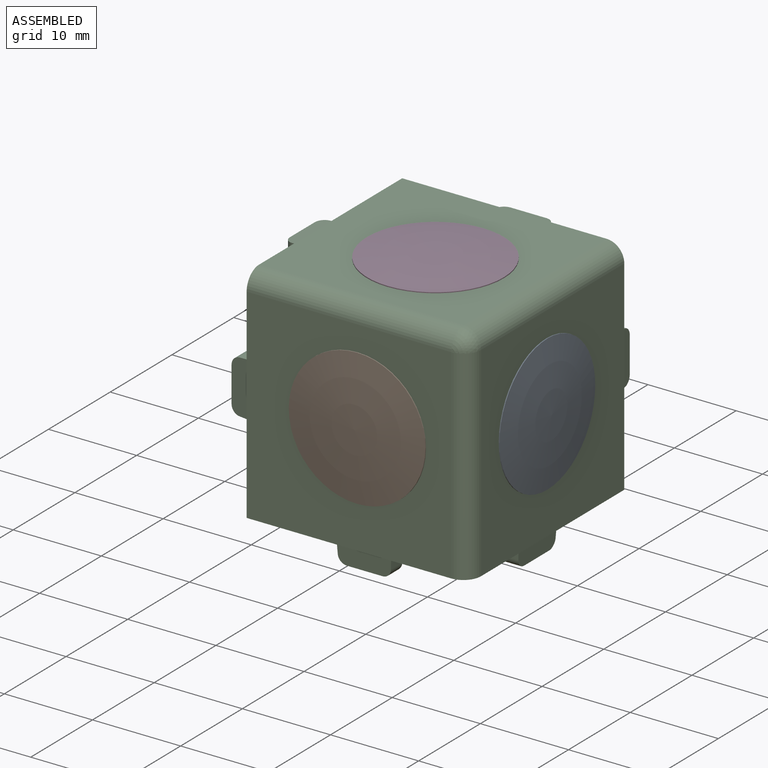
[diagram: assembled view]
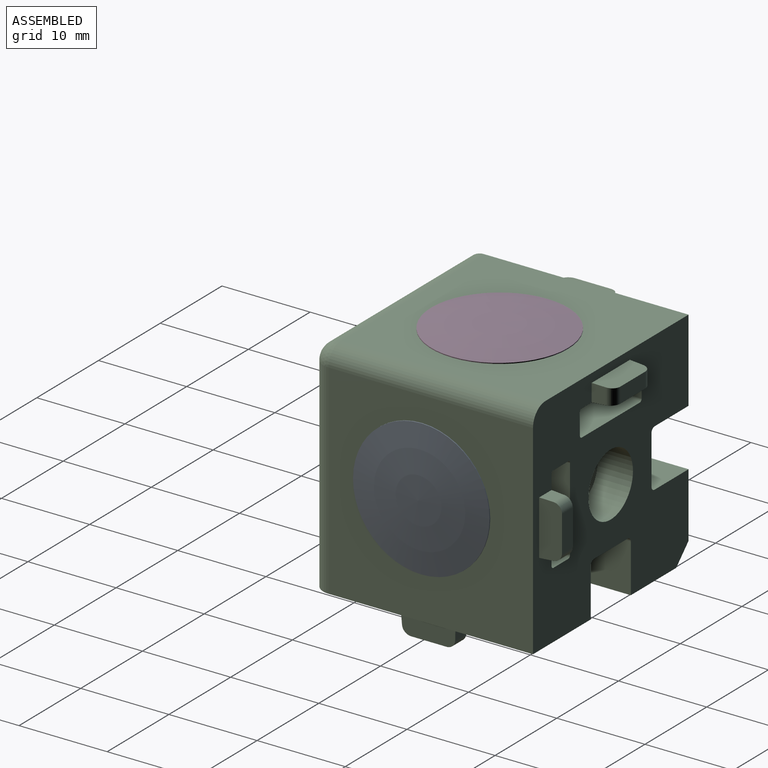
[diagram: assembled view, second angle]
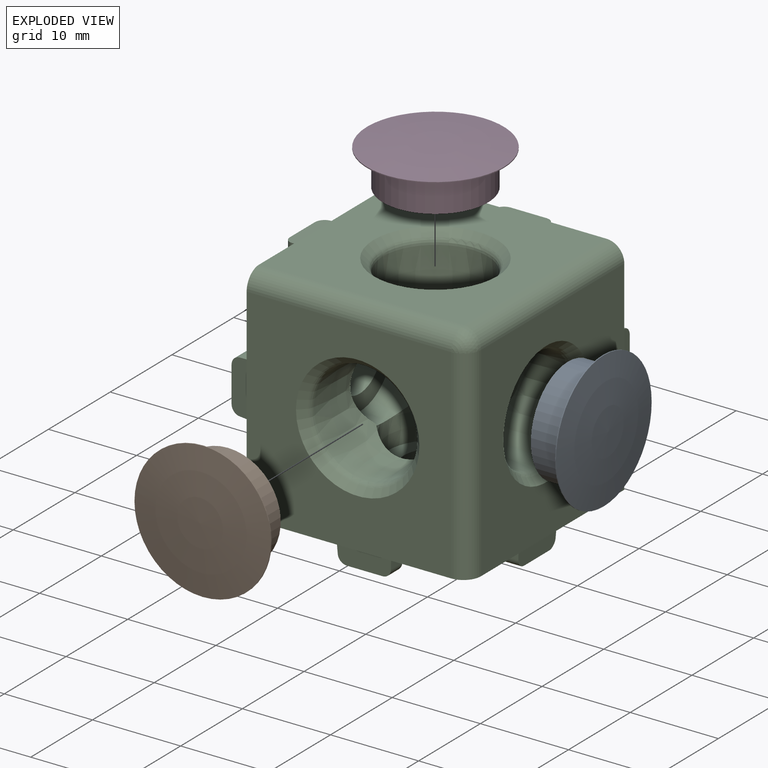
[diagram: exploded view]
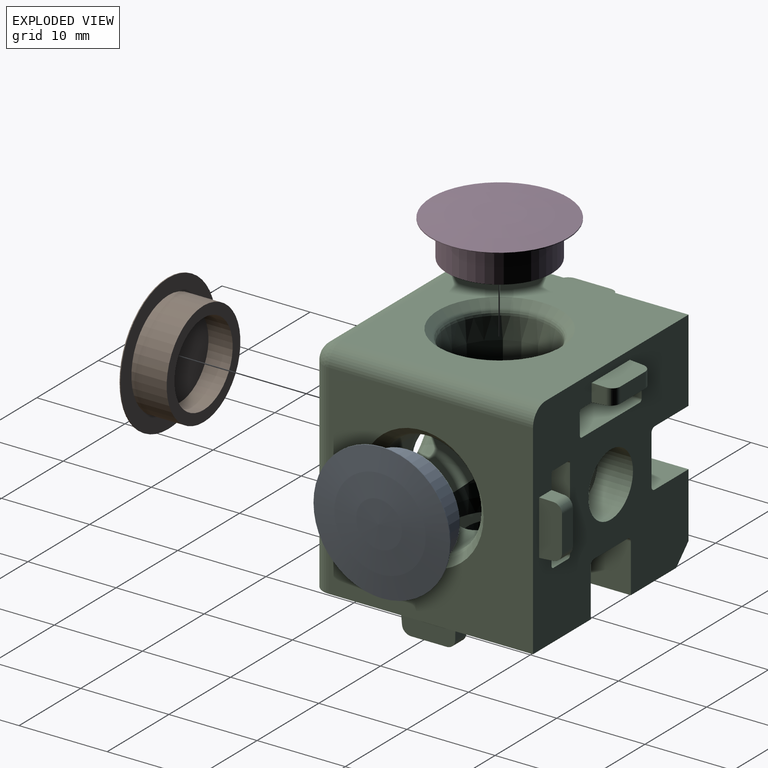
[diagram: exploded view, second angle]
ASSEMBLY  parts=4 mates=6
PART A: 7 faces, bbox 4.6x15.5x15.5 mm
  f0: plane 9.45x9.45mm, normal (-1,0,0), area 70.1mm2, adj f6
  f1: sphere r=60.31mm, area 189.5mm2, adj f2
  f2: cylinder r=7.75mm len=15.5mm, axis (-1,0,0), area 4.9mm2, adj f1,f3
  f3: plane 15.5x15.5mm, normal (-1,0,0), area 76.5mm2, adj f2,f4
  f4: cylinder r=5.98mm len=11.95mm, axis (-1,0,0), area 150.2mm2, adj f3,f5
  f5: plane 11.95x11.95mm, normal (-1,0,0), area 42mm2, adj f4,f6
  f6: cylinder r=4.72mm len=9.45mm, axis (-1,0,0), area 81.6mm2, adj f0,f5
PART B: 7 faces, bbox 15.5x4.6x15.5 mm
  f0: plane 9.45x9.45mm, normal (0,1,0), area 70.1mm2, adj f6
  f1: sphere r=60.31mm, area 189.5mm2, adj f2
  f2: cylinder r=7.75mm len=15.5mm, axis (0,1,0), area 4.9mm2, adj f1,f3
  f3: plane 15.5x15.5mm, normal (0,1,0), area 76.5mm2, adj f2,f4
  f4: cylinder r=5.98mm len=11.95mm, axis (0,1,0), area 150.2mm2, adj f3,f5
  f5: plane 11.95x11.95mm, normal (0,1,0), area 42mm2, adj f4,f6
  f6: cylinder r=4.72mm len=9.45mm, axis (0,1,0), area 81.6mm2, adj f0,f5
PART C: 200 faces, bbox 27.7x27.7x27.7 mm
  f0: plane 25.21x25.21mm, normal (-1,0,0), area 429mm2, adj f1,f2,f4,f6,f121,f127,f128,f129
  f1: plane 25.21x25.21mm, normal (0,1,0), area 429mm2, adj f0,f2,f5,f6,f11,f12,f13,f14
  f2: plane 25.21x25.21mm, normal (0,0,-1), area 429mm2, adj f0,f1,f4,f5,f58,f60,f61,f62
  f3: cone r=5.44mm half-angle=1.5deg, axis (0,-1,0), area 225.3mm2, adj f8,f71,f72,f123,f124
  f4: plane 23.2x23.2mm, normal (0,-1,0), area 384.3mm2, adj f0,f2,f7,f184,f187
  f5: plane 23.2x23.2mm, normal (1,0,0), area 384.3mm2, adj f1,f2,f125,f185,f187
  f6: plane 23.2x23.2mm, normal (0,0,1), area 384.3mm2, adj f0,f1,f69,f184,f185
  f7: cone r=6.26mm half-angle=45deg, axis (0,-1,0), area 43.9mm2, adj f4,f8
  f8: torus R=6.96mm, axis (0,1,0), area 28.9mm2, adj f3,f7
  f9: cone r=5.44mm half-angle=1.5deg, axis (0,-1,0), area 119.7mm2, adj f10,f71,f72,f123,f124
  f10: plane 10.89x10.89mm, normal (0,-1,0), area 52.4mm2, adj f9,f11
  f11: cylinder r=3.6mm len=7.2mm, axis (0,1,0), area 90.5mm2, adj f1,f10
  f12: plane 2x1.55mm, normal (1,0.05,0), area 3mm2, adj f1,f13,f15,f25
  f13: plane 9.42x7.24mm, normal (0,0.05,-1), area 58mm2, adj f1,f12,f14,f16,f24,f25,f39,f42
  f14: plane 2x1.55mm, normal (-1,0.05,0), area 3mm2, adj f1,f13,f15,f24
  f15: plane 6.22x2.52mm, normal (0,0.05,1), area 14.8mm2, adj f1,f12,f14,f16,f24,f25
  f16: plane 4.04x1.74mm, normal (0,1,0), area 7mm2, adj f13,f15,f24,f25
  f17: plane 6.22x2.52mm, normal (1,0.05,0), area 14.8mm2, adj f1,f18,f20,f21,f22,f23
  f18: plane 2x1.55mm, normal (0,0.05,-1), area 3mm2, adj f1,f17,f19,f23
  f19: plane 9.42x7.24mm, normal (-1,0.05,0), area 58mm2, adj f1,f18,f20,f21,f22,f23,f48,f53
  f20: plane 2x1.55mm, normal (0,0.05,1), area 3mm2, adj f1,f17,f19,f22
  f21: plane 4.04x1.74mm, normal (0,1,0), area 7mm2, adj f17,f19,f22,f23
  f22: cylinder r=1mm len=1.84mm, axis (1,0,0), area 2.7mm2, adj f17,f19,f20,f21
  f23: cylinder r=1mm len=1.84mm, axis (-1,0,0), area 2.7mm2, adj f17,f18,f19,f21
  f24: cylinder r=1mm len=1.84mm, axis (0,0,1), area 2.7mm2, adj f13,f14,f15,f16
  f25: cylinder r=1mm len=1.84mm, axis (0,0,-1), area 2.7mm2, adj f12,f13,f15,f16
  f26: plane 4.72x2.4mm, normal (-1,0.05,0), area 10.2mm2, adj f1,f36,f41,f42
  f27: plane 4.72x2.4mm, normal (1,0.05,0), area 10.2mm2, adj f1,f34,f39,f40
  f28: plane 9.4x4.72mm, normal (0,0.05,1), area 43.2mm2, adj f1,f34,f35,f36
  f29: plane 8.91x1.91mm, normal (0,1,0), area 17mm2, adj f35,f40,f41,f45
  f30: plane 4.72x2.4mm, normal (0,0.05,-1), area 10.2mm2, adj f1,f51,f54,f57
  f31: plane 9.4x4.72mm, normal (1,0.05,0), area 43.2mm2, adj f1,f46,f51,f52
  f32: plane 4.72x2.4mm, normal (0,0.05,1), area 10.2mm2, adj f1,f46,f47,f48
  f33: plane 8.91x1.91mm, normal (0,1,0), area 17mm2, adj f47,f52,f53,f57
  f34: cylinder r=0.3mm len=4.72mm, axis (0.05,-1,0.05), area 2.2mm2, adj f1,f27,f28,f37
  f35: cylinder r=0.3mm len=8.91mm, axis (-1,0,0), area 4.1mm2, adj f28,f29,f37,f38
  f36: cylinder r=0.3mm len=4.72mm, axis (-0.05,-1,0.05), area 2.2mm2, adj f1,f26,f28,f38
  f37: sphere r=0.3mm, area 0.1mm2, adj f34,f35,f40
  f38: sphere r=0.3mm, area 0.1mm2, adj f35,f36,f41
  f39: cylinder r=0.3mm len=4.72mm, axis (-0.05,1,0.05), area 2.2mm2, adj f1,f13,f27,f43
  f40: cylinder r=0.3mm len=1.91mm, axis (0,0,1), area 0.9mm2, adj f27,f29,f37,f43
  f41: cylinder r=0.3mm len=1.91mm, axis (0,0,-1), area 0.9mm2, adj f26,f29,f38,f44
  f42: cylinder r=0.3mm len=4.72mm, axis (0.05,1,0.05), area 2.2mm2, adj f1,f13,f26,f44
  f43: sphere r=0.3mm, area 0.1mm2, adj f39,f40,f45
  f44: sphere r=0.3mm, area 0.1mm2, adj f41,f42,f45
  f45: cylinder r=0.3mm len=8.91mm, axis (-1,0,0), area 4.1mm2, adj f13,f29,f43,f44
  f46: cylinder r=0.3mm len=4.72mm, axis (0.05,-1,0.05), area 2.2mm2, adj f1,f31,f32,f49
  f47: cylinder r=0.3mm len=1.91mm, axis (-1,0,0), area 0.9mm2, adj f32,f33,f49,f50
  f48: cylinder r=0.3mm len=4.72mm, axis (0.05,1,-0.05), area 2.2mm2, adj f1,f19,f32,f50
  f49: sphere r=0.3mm, area 0.1mm2, adj f46,f47,f52
  f50: sphere r=0.3mm, area 0.1mm2, adj f47,f48,f53
  f51: cylinder r=0.3mm len=4.72mm, axis (0.05,-1,-0.05), area 2.2mm2, adj f1,f30,f31,f55
  f52: cylinder r=0.3mm len=8.91mm, axis (0,0,1), area 4.1mm2, adj f31,f33,f49,f55
  f53: cylinder r=0.3mm len=8.91mm, axis (0,0,1), area 4.1mm2, adj f19,f33,f50,f56
  f54: cylinder r=0.3mm len=4.72mm, axis (0.05,1,0.05), area 2.2mm2, adj f1,f19,f30,f56
  f55: sphere r=0.3mm, area 0.1mm2, adj f51,f52,f57
  f56: sphere r=0.3mm, area 0.1mm2, adj f53,f54,f57
  f57: cylinder r=0.3mm len=1.91mm, axis (1,0,0), area 0.9mm2, adj f30,f33,f55,f56
  f58: plane 5.5x5.5mm, normal (-1,0,0), area 30.3mm2, adj f1,f2,f62,f63
  f59: plane 5.5x5.5mm, normal (0,0,-1), area 30.3mm2, adj f1,f63,f65,f66
  f60: plane 5.5x5.5mm, normal (1,0,0), area 30.2mm2, adj f1,f2,f66,f68
  f61: plane 5.5x5.5mm, normal (0,1,0), area 30.3mm2, adj f2,f62,f65,f68
  f62: cylinder r=0.5mm len=5.5mm, axis (0,0,-1), area 4.3mm2, adj f2,f58,f61,f64
  f63: cylinder r=0.5mm len=5.5mm, axis (0,-1,0), area 4.3mm2, adj f1,f58,f59,f64
  f64: sphere r=0.5mm, area 0.4mm2, adj f62,f63,f65
  f65: cylinder r=0.5mm len=5.5mm, axis (1,0,0), area 4.3mm2, adj f59,f61,f64,f67
  f66: cylinder r=0.5mm len=5.5mm, axis (0,-1,0), area 4.3mm2, adj f1,f59,f60,f67
  f67: sphere r=0.5mm, area 0.4mm2, adj f65,f66,f68
  f68: cylinder r=0.5mm len=5.5mm, axis (0,0,1), area 4.3mm2, adj f2,f60,f61,f67
  f69: cone r=6.26mm half-angle=45deg, axis (0,0,1), area 43.9mm2, adj f6,f70
  f70: torus R=6.96mm, axis (0,0,-1), area 28.9mm2, adj f69,f71
  f71: cone r=5.44mm half-angle=1.5deg, axis (0,0,1), area 225.3mm2, adj f3,f9,f70,f123,f124
  f72: cone r=5.44mm half-angle=1.5deg, axis (0,0,1), area 119.7mm2, adj f3,f9,f73,f123,f124
  f73: plane 10.89x10.89mm, normal (0,0,1), area 52.4mm2, adj f72,f74
  f74: cylinder r=3.6mm len=7.2mm, axis (0,0,-1), area 90.5mm2, adj f2,f73
  f75: plane 2x1.55mm, normal (1,0,-0.05), area 3mm2, adj f2,f76,f78,f88
  f76: plane 6.22x2.52mm, normal (0,-1,-0.05), area 14.8mm2, adj f2,f75,f77,f79,f87,f88
  f77: plane 2x1.55mm, normal (-1,0,-0.05), area 3mm2, adj f2,f76,f78,f87
  f78: plane 9.42x7.24mm, normal (0,1,-0.05), area 58mm2, adj f2,f75,f77,f79,f87,f88,f97,f98
  f79: plane 4.04x1.74mm, normal (0,0,-1), area 7mm2, adj f76,f78,f87,f88
  f80: plane 6.22x2.52mm, normal (1,0,-0.05), area 14.8mm2, adj f2,f81,f83,f84,f85,f86
  f81: plane 2x1.55mm, normal (0,-1,-0.05), area 3mm2, adj f2,f80,f82,f85
  f82: plane 9.42x7.24mm, normal (-1,0,-0.05), area 58mm2, adj f2,f81,f83,f84,f85,f86,f109,f114
  f83: plane 2x1.55mm, normal (0,1,-0.05), area 3mm2, adj f2,f80,f82,f86
  f84: plane 4.04x1.74mm, normal (0,0,-1), area 7mm2, adj f80,f82,f85,f86
  f85: cylinder r=1mm len=1.84mm, axis (1,0,0), area 2.7mm2, adj f80,f81,f82,f84
  f86: cylinder r=1mm len=1.84mm, axis (-1,0,0), area 2.7mm2, adj f80,f82,f83,f84
  f87: cylinder r=1mm len=1.84mm, axis (0,-1,0), area 2.7mm2, adj f76,f77,f78,f79
  f88: cylinder r=1mm len=1.84mm, axis (0,1,0), area 2.7mm2, adj f75,f76,f78,f79
  f89: plane 4.72x2.4mm, normal (-1,0,-0.05), area 10.2mm2, adj f2,f97,f102,f103
  f90: plane 9.4x4.72mm, normal (0,-1,-0.05), area 43.2mm2, adj f2,f103,f104,f108
  f91: plane 4.72x2.4mm, normal (1,0,-0.05), area 10.2mm2, adj f2,f98,f104,f105
  f92: plane 8.91x1.91mm, normal (0,0,-1), area 17mm2, adj f99,f102,f105,f108
  f93: plane 4.72x2.4mm, normal (0,-1,-0.05), area 10.2mm2, adj f2,f115,f116,f120
  f94: plane 9.4x4.72mm, normal (1,0,-0.05), area 43.2mm2, adj f2,f110,f116,f117
  f95: plane 4.72x2.4mm, normal (0,1,-0.05), area 10.2mm2, adj f2,f109,f110,f111
  f96: plane 8.91x1.91mm, normal (0,0,-1), area 17mm2, adj f111,f114,f117,f120
  f97: cylinder r=0.3mm len=4.72mm, axis (0.05,-0.05,-1), area 2.2mm2, adj f2,f78,f89,f100
  f98: cylinder r=0.3mm len=4.72mm, axis (-0.05,-0.05,-1), area 2.2mm2, adj f2,f78,f91,f101
  f99: cylinder r=0.3mm len=8.91mm, axis (-1,0,0), area 4.1mm2, adj f78,f92,f100,f101
  f100: sphere r=0.3mm, area 0.1mm2, adj f97,f99,f102
  f101: sphere r=0.3mm, area 0.1mm2, adj f98,f99,f105
  f102: cylinder r=0.3mm len=1.91mm, axis (0,1,0), area 0.9mm2, adj f89,f92,f100,f106
  f103: cylinder r=0.3mm len=4.72mm, axis (-0.05,-0.05,1), area 2.2mm2, adj f2,f89,f90,f106
  f104: cylinder r=0.3mm len=4.72mm, axis (0.05,-0.05,1), area 2.2mm2, adj f2,f90,f91,f107
  f105: cylinder r=0.3mm len=1.91mm, axis (0,-1,0), area 0.9mm2, adj f91,f92,f101,f107
  f106: sphere r=0.3mm, area 0.1mm2, adj f102,f103,f108
  f107: sphere r=0.3mm, area 0.1mm2, adj f104,f105,f108
  f108: cylinder r=0.3mm len=8.91mm, axis (-1,0,0), area 4.1mm2, adj f90,f92,f106,f107
  f109: cylinder r=0.3mm len=4.72mm, axis (0.05,-0.05,-1), area 2.2mm2, adj f2,f82,f95,f112
  f110: cylinder r=0.3mm len=4.72mm, axis (0.05,0.05,1), area 2.2mm2, adj f2,f94,f95,f113
  f111: cylinder r=0.3mm len=1.91mm, axis (1,0,0), area 0.9mm2, adj f95,f96,f112,f113
  f112: sphere r=0.3mm, area 0.1mm2, adj f109,f111,f114
  f113: sphere r=0.3mm, area 0.1mm2, adj f110,f111,f117
  f114: cylinder r=0.3mm len=8.91mm, axis (0,-1,0), area 4.1mm2, adj f82,f96,f112,f118
  f115: cylinder r=0.3mm len=4.72mm, axis (0.05,0.05,-1), area 2.2mm2, adj f2,f82,f93,f118
  f116: cylinder r=0.3mm len=4.72mm, axis (0.05,-0.05,1), area 2.2mm2, adj f2,f93,f94,f119
  f117: cylinder r=0.3mm len=8.91mm, axis (0,-1,0), area 4.1mm2, adj f94,f96,f113,f119
  f118: sphere r=0.3mm, area 0.1mm2, adj f114,f115,f120
  f119: sphere r=0.3mm, area 0.1mm2, adj f116,f117,f120
  f120: cylinder r=0.3mm len=1.91mm, axis (-1,0,0), area 0.9mm2, adj f93,f96,f118,f119
  f121: cylinder r=3.6mm len=7.2mm, axis (-1,0,0), area 90.5mm2, adj f0,f122
  f122: plane 10.89x10.89mm, normal (1,0,0), area 52.4mm2, adj f121,f123
  f123: cone r=5.44mm half-angle=1.5deg, axis (1,0,0), area 119.7mm2, adj f3,f9,f71,f72,f122
  f124: cone r=5.44mm half-angle=1.5deg, axis (1,0,0), area 225.3mm2, adj f3,f9,f71,f72,f126
  f125: cone r=6.26mm half-angle=45deg, axis (1,0,0), area 43.9mm2, adj f5,f126
  f126: torus R=6.96mm, axis (-1,0,0), area 28.9mm2, adj f124,f125
  f127: plane 2x1.55mm, normal (-0.05,-1,0), area 3mm2, adj f0,f128,f130,f140
  f128: plane 6.22x2.52mm, normal (-0.05,0,1), area 14.8mm2, adj f0,f127,f129,f131,f139,f140
  f129: plane 2x1.55mm, normal (-0.05,1,0), area 3mm2, adj f0,f128,f130,f139
  f130: plane 9.42x7.24mm, normal (-0.05,0,-1), area 58mm2, adj f0,f127,f129,f131,f139,f140,f149,f150
  f131: plane 4.04x1.74mm, normal (-1,0,0), area 7mm2, adj f128,f130,f139,f140
  f132: plane 6.22x2.52mm, normal (-0.05,-1,0), area 14.8mm2, adj f0,f133,f135,f136,f137,f138
  f133: plane 2x1.55mm, normal (-0.05,0,1), area 3mm2, adj f0,f132,f134,f137
  f134: plane 9.42x7.24mm, normal (-0.05,1,0), area 58mm2, adj f0,f133,f135,f136,f137,f138,f161,f166
  f135: plane 2x1.55mm, normal (-0.05,0,-1), area 3mm2, adj f0,f132,f134,f138
  f136: plane 4.04x1.74mm, normal (-1,0,0), area 7mm2, adj f132,f134,f137,f138
  f137: cylinder r=1mm len=1.84mm, axis (0,-1,0), area 2.7mm2, adj f132,f133,f134,f136
  f138: cylinder r=1mm len=1.84mm, axis (0,1,0), area 2.7mm2, adj f132,f134,f135,f136
  f139: cylinder r=1mm len=1.84mm, axis (0,0,1), area 2.7mm2, adj f128,f129,f130,f131
  f140: cylinder r=1mm len=1.84mm, axis (0,0,-1), area 2.7mm2, adj f127,f128,f130,f131
  f141: plane 4.72x2.4mm, normal (-0.05,1,0), area 10.2mm2, adj f0,f149,f154,f155
  f142: plane 9.4x4.72mm, normal (-0.05,0,1), area 43.2mm2, adj f0,f155,f156,f160
  f143: plane 4.72x2.4mm, normal (-0.05,-1,0), area 10.2mm2, adj f0,f150,f156,f157
  f144: plane 8.91x1.91mm, normal (-1,0,0), area 17mm2, adj f151,f154,f157,f160
  f145: plane 4.72x2.4mm, normal (-0.05,0,1), area 10.2mm2, adj f0,f167,f168,f172
  f146: plane 9.4x4.72mm, normal (-0.05,-1,0), area 43.2mm2, adj f0,f162,f168,f169
  f147: plane 4.72x2.4mm, normal (-0.05,0,-1), area 10.2mm2, adj f0,f161,f162,f163
  f148: plane 8.91x1.91mm, normal (-1,0,0), area 17mm2, adj f163,f166,f169,f172
  f149: cylinder r=0.3mm len=4.72mm, axis (-1,-0.05,0.05), area 2.2mm2, adj f0,f130,f141,f152
  f150: cylinder r=0.3mm len=4.72mm, axis (-1,0.05,0.05), area 2.2mm2, adj f0,f130,f143,f153
  f151: cylinder r=0.3mm len=8.91mm, axis (0,1,0), area 4.1mm2, adj f130,f144,f152,f153
  f152: sphere r=0.3mm, area 0.1mm2, adj f149,f151,f154
  f153: sphere r=0.3mm, area 0.1mm2, adj f150,f151,f157
  f154: cylinder r=0.3mm len=1.91mm, axis (0,0,-1), area 0.9mm2, adj f141,f144,f152,f158
  f155: cylinder r=0.3mm len=4.72mm, axis (1,0.05,0.05), area 2.2mm2, adj f0,f141,f142,f158
  f156: cylinder r=0.3mm len=4.72mm, axis (1,-0.05,0.05), area 2.2mm2, adj f0,f142,f143,f159
  f157: cylinder r=0.3mm len=1.91mm, axis (0,0,1), area 0.9mm2, adj f143,f144,f153,f159
  f158: sphere r=0.3mm, area 0.1mm2, adj f154,f155,f160
  f159: sphere r=0.3mm, area 0.1mm2, adj f156,f157,f160
  f160: cylinder r=0.3mm len=8.91mm, axis (0,1,0), area 4.1mm2, adj f142,f144,f158,f159
  f161: cylinder r=0.3mm len=4.72mm, axis (-1,-0.05,0.05), area 2.2mm2, adj f0,f134,f147,f164
  f162: cylinder r=0.3mm len=4.72mm, axis (1,-0.05,-0.05), area 2.2mm2, adj f0,f146,f147,f165
  f163: cylinder r=0.3mm len=1.91mm, axis (0,-1,0), area 0.9mm2, adj f147,f148,f164,f165
  f164: sphere r=0.3mm, area 0.1mm2, adj f161,f163,f166
  f165: sphere r=0.3mm, area 0.1mm2, adj f162,f163,f169
  f166: cylinder r=0.3mm len=8.91mm, axis (0,0,1), area 4.1mm2, adj f134,f148,f164,f170
  f167: cylinder r=0.3mm len=4.72mm, axis (-1,-0.05,-0.05), area 2.2mm2, adj f0,f134,f145,f170
  f168: cylinder r=0.3mm len=4.72mm, axis (1,-0.05,0.05), area 2.2mm2, adj f0,f145,f146,f171
  f169: cylinder r=0.3mm len=8.91mm, axis (0,0,1), area 4.1mm2, adj f146,f148,f165,f171
  f170: sphere r=0.3mm, area 0.1mm2, adj f166,f167,f172
  f171: sphere r=0.3mm, area 0.1mm2, adj f168,f169,f172
  f172: cylinder r=0.3mm len=1.91mm, axis (0,1,0), area 0.9mm2, adj f145,f148,f170,f171
  f173: plane 5.5x5.5mm, normal (0,1,0), area 30.2mm2, adj f0,f2,f177,f178
  f174: plane 5.5x5.5mm, normal (0,-1,0), area 30.2mm2, adj f0,f2,f180,f183
  f175: plane 5.5x5.5mm, normal (0,0,-1), area 30.2mm2, adj f0,f177,f180,f181
  f176: plane 5.5x5.5mm, normal (-1,0,0), area 30.2mm2, adj f2,f178,f181,f183
  f177: cylinder r=0.5mm len=5.5mm, axis (1,0,0), area 4.3mm2, adj f0,f173,f175,f179
  f178: cylinder r=0.5mm len=5.5mm, axis (0,0,1), area 4.3mm2, adj f2,f173,f176,f179
  f179: sphere r=0.5mm, area 0.4mm2, adj f177,f178,f181
  f180: cylinder r=0.5mm len=5.5mm, axis (1,0,0), area 4.3mm2, adj f0,f174,f175,f182
  f181: cylinder r=0.5mm len=5.5mm, axis (0,1,0), area 4.3mm2, adj f175,f176,f179,f182
  f182: sphere r=0.5mm, area 0.4mm2, adj f180,f181,f183
  f183: cylinder r=0.5mm len=5.5mm, axis (0,0,-1), area 4.3mm2, adj f2,f174,f176,f182
  f184: cylinder r=2mm len=23.2mm, axis (-1,0,0), area 72.9mm2, adj f0,f4,f6,f186
  f185: cylinder r=2mm len=23.2mm, axis (0,-1,0), area 72.9mm2, adj f1,f5,f6,f186
  f186: sphere r=2mm, area 6.3mm2, adj f184,f185,f187
  f187: cylinder r=2mm len=23.2mm, axis (0,0,-1), area 72.9mm2, adj f2,f4,f5,f186
  f188: plane 5.5x5.5mm, normal (0,0,-1), area 30.2mm2, adj f0,f1,f192,f193
  f189: plane 5.5x5.5mm, normal (0,0,1), area 30.2mm2, adj f0,f1,f195,f198
  f190: plane 5.5x5.5mm, normal (-1,0,0), area 30.3mm2, adj f1,f192,f195,f196
  f191: plane 5.5x5.5mm, normal (0,1,0), area 30.2mm2, adj f0,f193,f196,f198
  f192: cylinder r=0.5mm len=5.5mm, axis (0,-1,0), area 4.3mm2, adj f1,f188,f190,f194
  f193: cylinder r=0.5mm len=5.5mm, axis (1,0,0), area 4.3mm2, adj f0,f188,f191,f194
  f194: sphere r=0.5mm, area 0.4mm2, adj f192,f193,f196
  f195: cylinder r=0.5mm len=5.5mm, axis (0,-1,0), area 4.3mm2, adj f1,f189,f190,f197
  f196: cylinder r=0.5mm len=5.5mm, axis (0,0,-1), area 4.3mm2, adj f190,f191,f194,f197
  f197: sphere r=0.5mm, area 0.4mm2, adj f195,f196,f198
  f198: cylinder r=0.5mm len=5.5mm, axis (-1,0,0), area 4.3mm2, adj f0,f189,f191,f197
  f199: plane 2x2mm, normal (-0.58,0.58,-0.58), area 3.5mm2, adj f0,f1,f2
PART D: 7 faces, bbox 15.5x15.5x4.6 mm
  f0: plane 9.45x9.45mm, normal (0,0,-1), area 70.1mm2, adj f6
  f1: sphere r=60.31mm, area 189.5mm2, adj f2
  f2: cylinder r=7.75mm len=15.5mm, axis (0,0,-1), area 4.9mm2, adj f1,f3
  f3: plane 15.5x15.5mm, normal (0,0,-1), area 76.5mm2, adj f2,f4
  f4: cylinder r=5.98mm len=11.95mm, axis (0,0,-1), area 150.2mm2, adj f3,f5
  f5: plane 11.95x11.95mm, normal (0,0,-1), area 42mm2, adj f4,f6
  f6: cylinder r=4.72mm len=9.45mm, axis (0,0,-1), area 81.6mm2, adj f0,f5
PLACE A t=(-9.88,24.11,-11.84)mm
PLACE B t=(-9.76,24.24,-11.84)mm
PLACE C t=(-9.76,24.11,-11.84)mm
PLACE D t=(-9.76,24.11,-11.97)mm
MATE planar C.f6 <-> D.f2  axis (0,0,1) through (1.44,12.91,13.36)mm
MATE planar B.f2 <-> C.f4  axis (0,1,0) through (2.84,-1.09,0.76)mm
MATE planar A.f2 <-> C.f5  axis (-1,0,0) through (15.44,11.51,0.76)mm
MATE cylindrical D.f2 <-> C.f71  axis (0,0,-1) through (2.84,11.51,9.36)mm
MATE cylindrical C.f3 <-> B.f2  axis (0,-1,0) through (2.84,0.34,0.76)mm
MATE cylindrical C.f123 <-> A.f2  axis (1,0,0) through (14.02,11.51,0.76)mm
